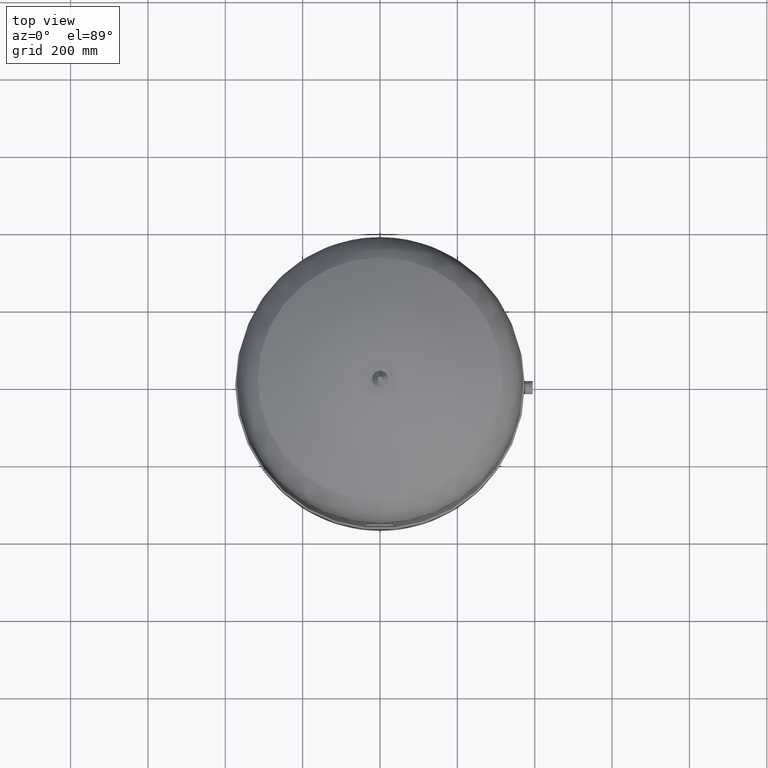
[diagram: clean part render]
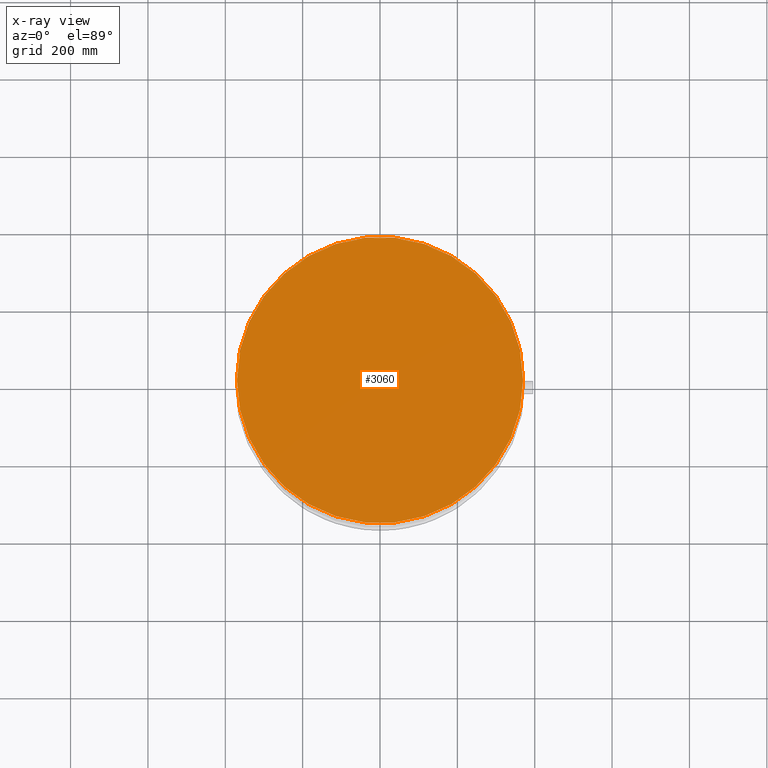
[diagram: x-ray — body ghosted, one internal face saturated and labeled with its STEP entity id]
A machine part, top view, then the same camera in x-ray: the body is ghosted and one INTERNAL B-rep face — a face not visible from any outside direction — is saturated and labeled: STEP entity #3060.
In plain terms, the highlighted face is a freeform B-spline surface patch.
Its self-contained STEP definition (entity closure, byte-faithful):
#2769=CARTESIAN_POINT('',(-370.000000000000060,-3.471874E-014,1341.0));
#2770=VERTEX_POINT('',#2769);
#2779=CARTESIAN_POINT('',(370.0,1.059170E-014,1341.0));
#2780=VERTEX_POINT('',#2779);
#2781=CARTESIAN_POINT('',(0.0,-3.471874E-014,1341.0));
#2782=DIRECTION('',(0.0,0.0,1.0));
#2783=DIRECTION('',(-1.0,0.0,0.0));
#2784=AXIS2_PLACEMENT_3D('',#2781,#2782,#2783);
#2785=CIRCLE('',#2784,370.000000000000060);
#2786=EDGE_CURVE('',#2770,#2780,#2785,.T.);
#3041=CARTESIAN_POINT('',(0.0,-3.471874E-014,1341.0));
#3042=DIRECTION('',(0.0,0.0,1.0));
#3043=DIRECTION('',(-1.0,0.0,0.0));
#3044=AXIS2_PLACEMENT_3D('',#3041,#3042,#3043);
#3045=CIRCLE('',#3044,370.000000000000060);
#3046=EDGE_CURVE('',#2780,#2770,#3045,.T.);
#3051=CARTESIAN_POINT('',(370.000000000000110,370.0,1341.0));
#3052=CARTESIAN_POINT('',(370.000000000000110,-370.000000000000110,1341.000000000000200));
#3053=CARTESIAN_POINT('',(-370.0,370.0,1341.0));
#3054=CARTESIAN_POINT('',(-370.0,-370.000000000000110,1341.0));
#3055=B_SPLINE_SURFACE_WITH_KNOTS('',1,1,((#3051,#3053),(#3052,#3054)),.UNSPECIFIED.,.F.,.F.,.U.,(2,2),(2,2),(0.0,740.000000000000110),(0.0,740.000000000000110),.UNSPECIFIED.);
#3056=ORIENTED_EDGE('',*,*,#2786,.F.);
#3057=ORIENTED_EDGE('',*,*,#3046,.F.);
#3058=EDGE_LOOP('',(#3056,#3057));
#3059=FACE_OUTER_BOUND('',#3058,.T.);
#3060=ADVANCED_FACE('',(#3059),#3055,.T.);